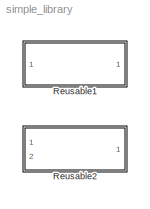
MODEL simple_library
KIND library
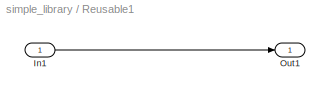
BLOCK [SubSystem] Reusable1
  Ports = [1, 1]
  RequestExecContextInheritance = off
  SID = 1
BLOCK [Inport] Reusable1/In1
  IconDisplay = Port number
  SID = 2
BLOCK [Outport] Reusable1/Out1
  IconDisplay = Port number
  SID = 3
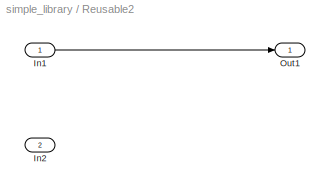
BLOCK [SubSystem] Reusable2
  Ports = [2, 1]
  RequestExecContextInheritance = off
  SID = 4
BLOCK [Inport] Reusable2/In1
  IconDisplay = Port number
  SID = 5
BLOCK [Inport] Reusable2/In2
  IconDisplay = Port number
  Port = 2
  SID = 7
BLOCK [Outport] Reusable2/Out1
  IconDisplay = Port number
  SID = 6
LINE Reusable1/In1:1 -> Reusable1/Out1:1
LINE Reusable2/In1:1 -> Reusable2/Out1:1
